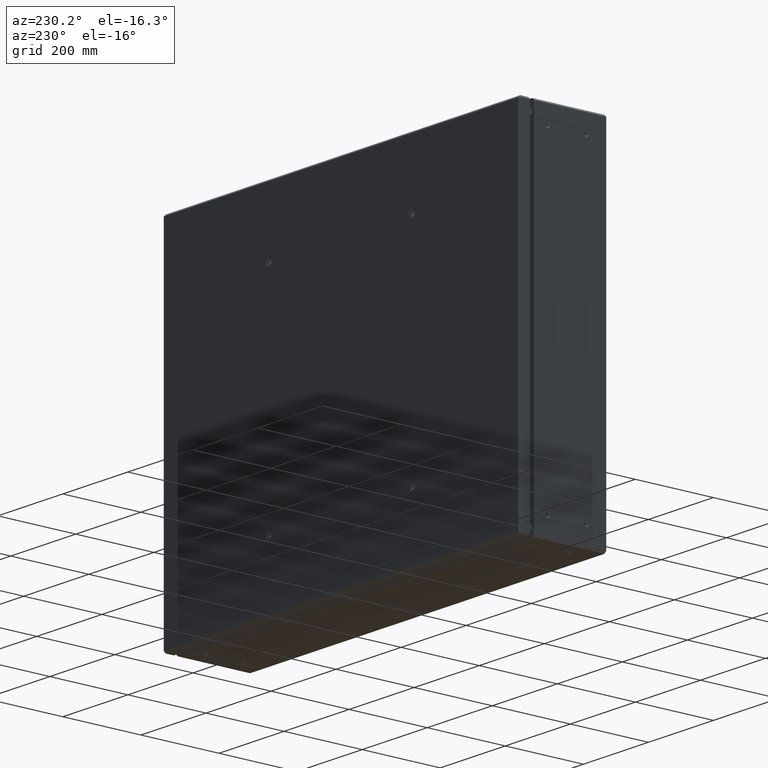
[diagram: clean part render]
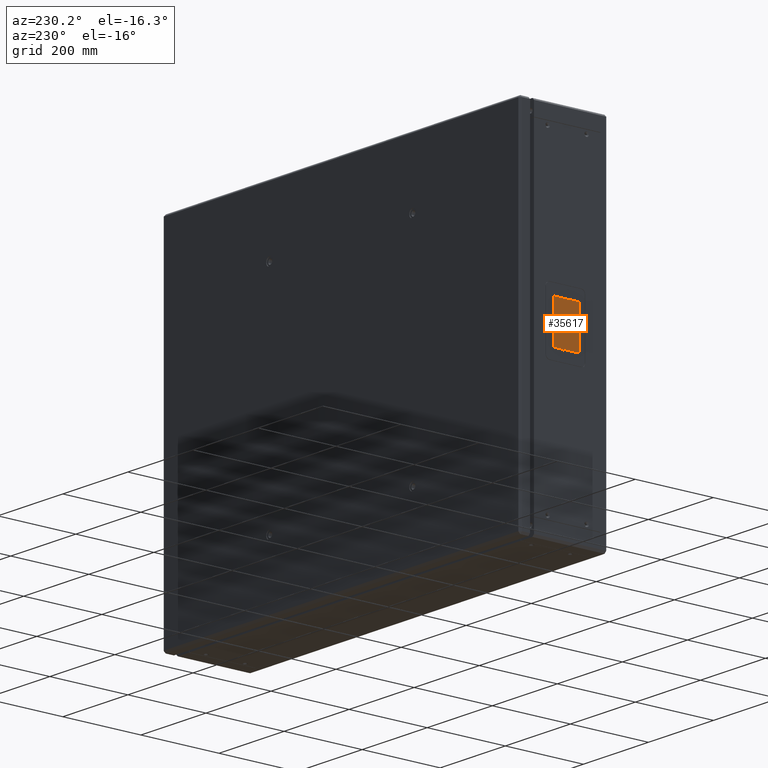
[diagram: same view with one face highlighted and labeled with its STEP entity id]
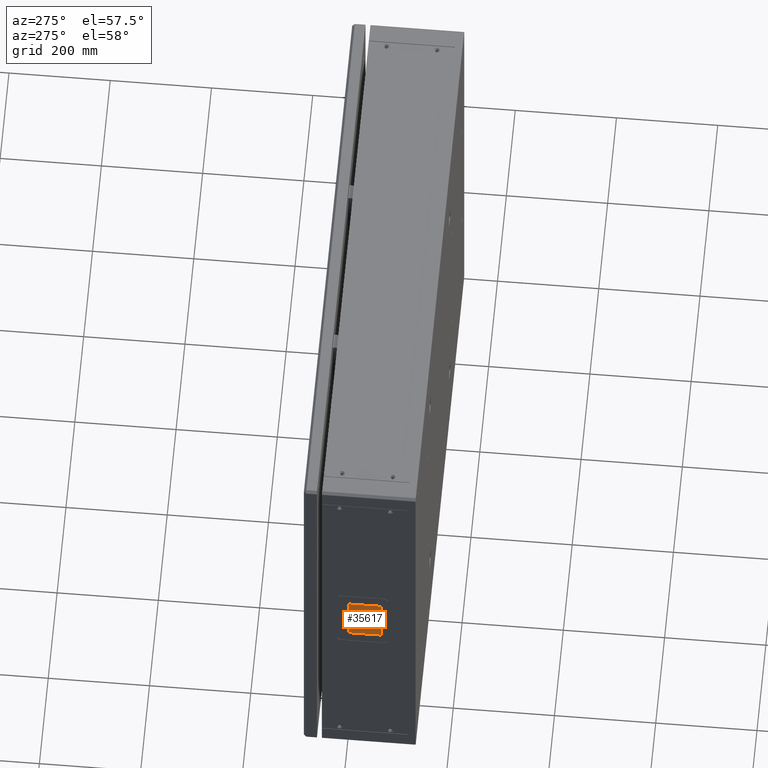
[diagram: same view with one face highlighted and labeled with its STEP entity id]
A machine part, auxiliary view. The second image highlights one B-rep face of the part: STEP entity #35617.
A second angle (auxiliary view) of the same face is appended — the face is thin or edge-on in the first view.
In plain terms, the highlighted planar face has unit normal (-1, 0, 0).
Its self-contained STEP definition (entity closure, byte-faithful):
#1131 = CARTESIAN_POINT ( 'NONE',  ( -708.4695244093446718, 132.7650746403553228, 796.9442352924387478 ) ) ;
#1294 = CARTESIAN_POINT ( 'NONE',  ( -708.4695244093441033, 132.7650746403553796, 901.9442352924388615 ) ) ;
#1728 = EDGE_CURVE ( 'NONE', #18949, #15926, #16755, .T. ) ;
#1896 = VECTOR ( 'NONE', #31744, 1000.000000000000000 ) ;
#2620 = VECTOR ( 'NONE', #48400, 1000.000000000000000 ) ;
#5637 = CARTESIAN_POINT ( 'NONE',  ( -708.4695244093441033, 197.7650746403553796, 901.9442352924387478 ) ) ;
#6351 = VERTEX_POINT ( 'NONE', #38568 ) ;
#8921 = CARTESIAN_POINT ( 'NONE',  ( -708.4695244093443307, 164.4650746403553683, 849.4442352924387478 ) ) ;
#9440 = PLANE ( 'NONE',  #12578 ) ;
#9778 = EDGE_CURVE ( 'NONE', #6351, #13915, #20430, .T. ) ;
#12578 = AXIS2_PLACEMENT_3D ( 'NONE', #8921, #24525, #16869 ) ;
#13915 = VERTEX_POINT ( 'NONE', #32784 ) ;
#15926 = VERTEX_POINT ( 'NONE', #42515 ) ;
#16755 = LINE ( 'NONE', #1131, #40019 ) ;
#16869 = DIRECTION ( 'NONE',  ( -4.835826229395823482E-15, -4.631761069510703259E-16, -1.000000000000000000 ) ) ;
#18655 = EDGE_CURVE ( 'NONE', #15926, #6351, #28164, .T. ) ;
#18949 = VERTEX_POINT ( 'NONE', #30962 ) ;
#20430 = LINE ( 'NONE', #40153, #30652 ) ;
#23600 = ORIENTED_EDGE ( 'NONE', *, *, #1728, .T. ) ;
#24525 = DIRECTION ( 'NONE',  ( -1.000000000000000000, 2.498001805406600244E-16, 4.835826229395823482E-15 ) ) ;
#28164 = LINE ( 'NONE', #1294, #1896 ) ;
#29228 = EDGE_CURVE ( 'NONE', #13915, #18949, #44822, .T. ) ;
#30652 = VECTOR ( 'NONE', #43736, 1000.000000000000000 ) ;
#30962 = CARTESIAN_POINT ( 'NONE',  ( -708.4695244093445581, 197.7650746403553512, 796.9442352924387478 ) ) ;
#31744 = DIRECTION ( 'NONE',  ( 4.835826229395823482E-15, 3.310066992575992857E-16, 1.000000000000000000 ) ) ;
#32784 = CARTESIAN_POINT ( 'NONE',  ( -708.4695244093441033, 197.7650746403553796, 901.9442352924387478 ) ) ;
#34032 = ORIENTED_EDGE ( 'NONE', *, *, #18655, .T. ) ;
#35060 = EDGE_LOOP ( 'NONE', ( #23600, #34032, #38672, #43017 ) ) ;
#35179 = DIRECTION ( 'NONE',  ( -2.498001805406582987E-16, -1.000000000000000000, 3.564238930448064914E-16 ) ) ;
#35617 = ADVANCED_FACE ( 'NONE', ( #43991 ), #9440, .T. ) ;
#38568 = CARTESIAN_POINT ( 'NONE',  ( -708.4695244093441033, 132.7650746403553796, 901.9442352924388615 ) ) ;
#38672 = ORIENTED_EDGE ( 'NONE', *, *, #9778, .T. ) ;
#40019 = VECTOR ( 'NONE', #35179, 1000.000000000000000 ) ;
#40153 = CARTESIAN_POINT ( 'NONE',  ( -708.4695244093441033, 132.7650746403553796, 901.9442352924388615 ) ) ;
#42515 = CARTESIAN_POINT ( 'NONE',  ( -708.4695244093446718, 132.7650746403553228, 796.9442352924387478 ) ) ;
#43017 = ORIENTED_EDGE ( 'NONE', *, *, #29228, .T. ) ;
#43736 = DIRECTION ( 'NONE',  ( 2.498001805406588411E-16, 1.000000000000000000, -2.496716791385414736E-16 ) ) ;
#43991 = FACE_OUTER_BOUND ( 'NONE', #35060, .T. ) ;
#44822 = LINE ( 'NONE', #5637, #2620 ) ;
#48400 = DIRECTION ( 'NONE',  ( -4.835826229395823482E-15, -4.631761069510703259E-16, -1.000000000000000000 ) ) ;